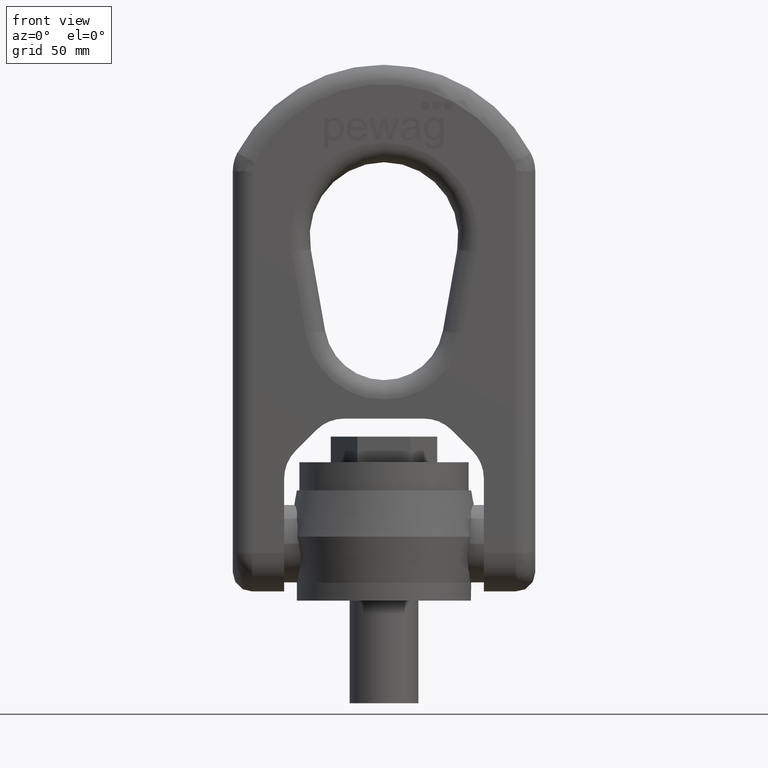
[diagram: clean part render]
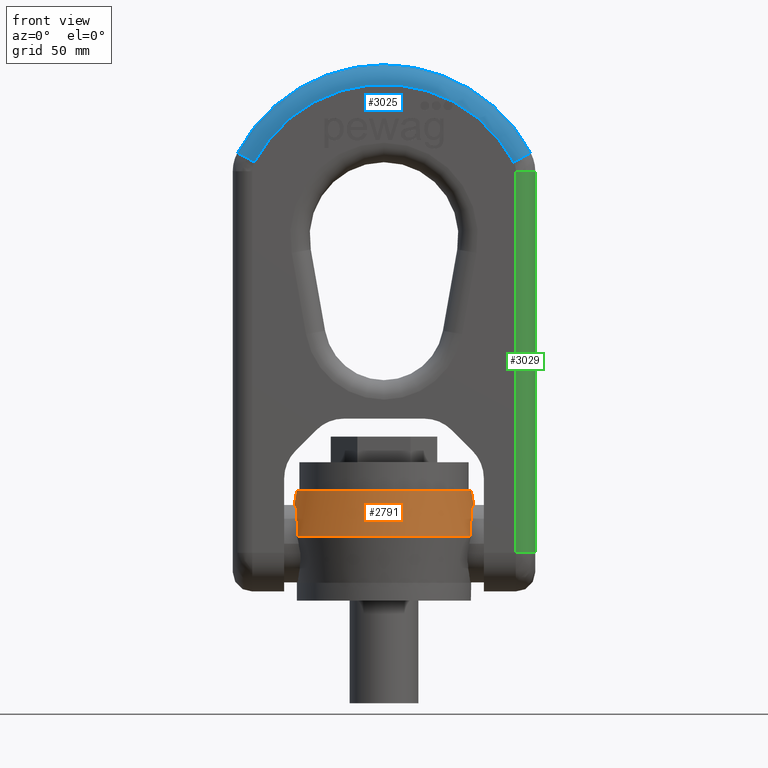
[diagram: same view with three faces highlighted in distinct colors, each labeled with its STEP entity id]
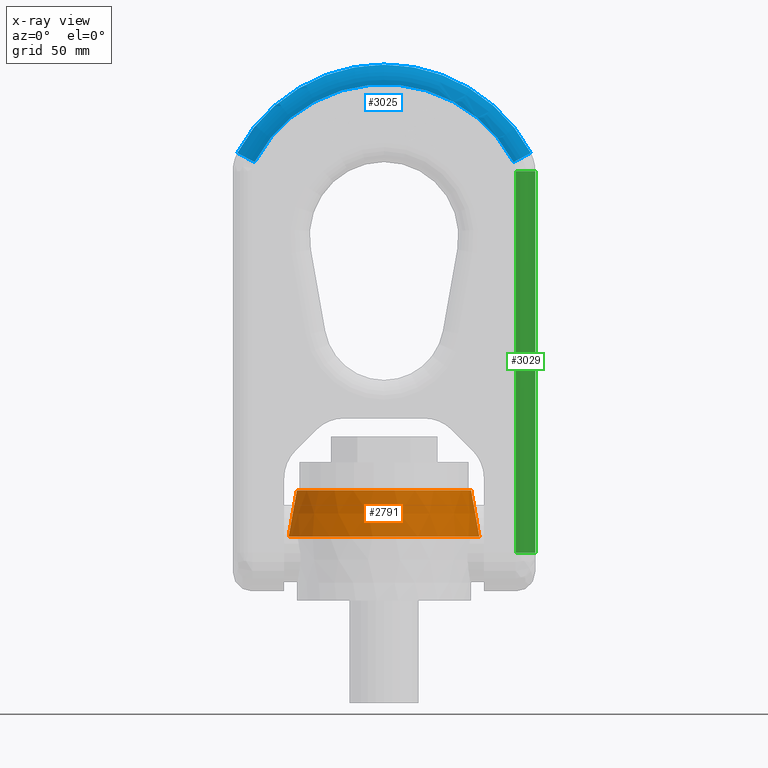
[diagram: x-ray of the same camera — body ghosted, the three highlighted faces saturated]
A machine part, front view with three faces highlighted in distinct colors.
The next image is the same camera in x-ray (body ghosted, the three faces saturated) — at least one of them is partly hidden behind the body in this view.
Their STEP definitions:

[orange] entity #2791 — the highlighted conical surface has half-angle 10 deg.
#2436=CONICAL_SURFACE('',#5839,37.1738856527524,9.99999999999999);
#2791=ADVANCED_FACE('',(#3077,#3078),#2436,.T.);
#3077=FACE_BOUND('',#3146,.T.);
#3078=FACE_BOUND('',#3147,.T.);
#3146=EDGE_LOOP('',(#3442));
#3147=EDGE_LOOP('',(#3443));
#3442=ORIENTED_EDGE('',*,*,#5122,.T.);
#3443=ORIENTED_EDGE('',*,*,#5121,.F.);
#4701=VERTEX_POINT('',#6950);
#4702=VERTEX_POINT('',#6953);
#5121=EDGE_CURVE('',#4701,#4701,#5753,.T.);
#5122=EDGE_CURVE('',#4702,#4702,#5754,.T.);
#5753=CIRCLE('',#5836,37.1738856527524);
#5754=CIRCLE('',#5838,34.);
#5836=AXIS2_PLACEMENT_3D('',#6949,#6082,#6083);
#5838=AXIS2_PLACEMENT_3D('',#6952,#6086,#6087);
#5839=AXIS2_PLACEMENT_3D('',#6954,#6088,#6089);
#6082=DIRECTION('',(0.,0.,-1.));
#6083=DIRECTION('',(-1.,0.,0.));
#6086=DIRECTION('',(0.,0.,-1.));
#6087=DIRECTION('',(-1.,0.,0.));
#6088=DIRECTION('',(0.,0.,-1.));
#6089=DIRECTION('',(-1.,0.,8.12513553477516E-17));
#6949=CARTESIAN_POINT('',(0.,0.,25.));
#6950=CARTESIAN_POINT('',(-37.1738856527524,0.,25.));
#6952=CARTESIAN_POINT('',(0.,0.,43.));
#6953=CARTESIAN_POINT('',(-34.,0.,43.));
#6954=CARTESIAN_POINT('',(0.,0.,25.));

[blue] entity #3025 — the highlighted toroidal blend (fillet) surface has major radius 57.2026 mm and minor (blend) radius 7.6 mm.
#201=TOROIDAL_SURFACE('',#6039,57.2026315789474,7.6);
#2650=FACE_OUTER_BOUND('',#3418,.T.);
#3025=ADVANCED_FACE('',(#2650),#201,.T.);
#3418=EDGE_LOOP('',(#4637,#4638,#4639,#4640));
#4637=ORIENTED_EDGE('',*,*,#5733,.F.);
#4638=ORIENTED_EDGE('',*,*,#5182,.F.);
#4639=ORIENTED_EDGE('',*,*,#5735,.T.);
#4640=ORIENTED_EDGE('',*,*,#5371,.F.);
#4748=VERTEX_POINT('',#7080);
#4749=VERTEX_POINT('',#7082);
#4927=VERTEX_POINT('',#7761);
#4930=VERTEX_POINT('',#7766);
#5182=EDGE_CURVE('',#4748,#4749,#5766,.T.);
#5371=EDGE_CURVE('',#4930,#4927,#5792,.T.);
#5733=EDGE_CURVE('',#4749,#4930,#5811,.T.);
#5735=EDGE_CURVE('',#4748,#4927,#5813,.T.);
#5766=CIRCLE('',#5872,57.2026315789474);
#5792=CIRCLE('',#5905,64.8026315789474);
#5811=CIRCLE('',#6036,7.6);
#5813=CIRCLE('',#6038,7.6);
#5872=AXIS2_PLACEMENT_3D('',#7081,#6202,#6203);
#5905=AXIS2_PLACEMENT_3D('',#7767,#6363,#6364);
#6036=AXIS2_PLACEMENT_3D('',#9737,#6880,#6881);
#6038=AXIS2_PLACEMENT_3D('',#9771,#6884,#6885);
#6039=AXIS2_PLACEMENT_3D('',#9772,#6886,#6887);
#6202=DIRECTION('',(0.,-1.,0.));
#6203=DIRECTION('',(0.,0.,-1.));
#6363=DIRECTION('',(0.,1.,0.));
#6364=DIRECTION('',(0.,0.,-1.));
#6880=DIRECTION('',(-0.469339749287081,3.65333715049538E-15,-0.883017666719721));
#6881=DIRECTION('',(0.883017666719721,0.,-0.46933974928708));
#6884=DIRECTION('',(-0.469339749287084,3.65333715049538E-15,0.883017666719719));
#6885=DIRECTION('',(-0.883017666719719,0.,-0.469339749287084));
#6886=DIRECTION('',(0.,-1.,0.));
#6887=DIRECTION('',(0.,0.,-1.));
#7080=CARTESIAN_POINT('',(50.5109342670699,-15.2,171.044837184877));
#7081=CARTESIAN_POINT('',(0.,-15.2,144.197368421053));
#7082=CARTESIAN_POINT('',(-50.5109342670699,-15.2,171.044837184877));
#7761=CARTESIAN_POINT('',(57.2218685341398,-7.6,174.611819279459));
#7766=CARTESIAN_POINT('',(-57.2218685341398,-7.6,174.611819279459));
#7767=CARTESIAN_POINT('',(0.,-7.6,144.197368421053));
#9737=CARTESIAN_POINT('',(-50.5109342670699,-7.6,171.044837184877));
#9771=CARTESIAN_POINT('',(50.5109342670699,-7.6,171.044837184877));
#9772=CARTESIAN_POINT('',(0.,-7.6,144.197368421053));

[green] entity #3029 — the highlighted cylindrical surface (edge-blend (fillet) strip) has radius 7.6 mm, axis along (0, 0, -1).
#1776=LINE('',#7077,#2084);
#1869=LINE('',#7758,#2177);
#2084=VECTOR('',#6199,1.);
#2177=VECTOR('',#6356,1.);
#2654=FACE_OUTER_BOUND('',#3422,.T.);
#3029=ADVANCED_FACE('',(#2654),#3063,.T.);
#3063=CYLINDRICAL_SURFACE('',#6045,7.6);
#3422=EDGE_LOOP('',(#4653,#4654,#4655,#4656));
#4653=ORIENTED_EDGE('',*,*,#5737,.F.);
#4654=ORIENTED_EDGE('',*,*,#5180,.F.);
#4655=ORIENTED_EDGE('',*,*,#5739,.F.);
#4656=ORIENTED_EDGE('',*,*,#5367,.F.);
#4742=VERTEX_POINT('',#7066);
#4747=VERTEX_POINT('',#7078);
#4923=VERTEX_POINT('',#7752);
#4926=VERTEX_POINT('',#7757);
#5180=EDGE_CURVE('',#4742,#4747,#1776,.T.);
#5367=EDGE_CURVE('',#4926,#4923,#1869,.T.);
#5737=EDGE_CURVE('',#4747,#4926,#5815,.T.);
#5739=EDGE_CURVE('',#4923,#4742,#5817,.T.);
#5815=CIRCLE('',#6042,7.6);
#5817=CIRCLE('',#6044,7.6);
#6042=AXIS2_PLACEMENT_3D('',#9775,#6892,#6893);
#6044=AXIS2_PLACEMENT_3D('',#9809,#6896,#6897);
#6045=AXIS2_PLACEMENT_3D('',#9810,#6898,#6899);
#6199=DIRECTION('',(-8.28524645242654E-17,0.,1.));
#6356=DIRECTION('',(8.28524645242654E-17,0.,-1.));
#6892=DIRECTION('',(0.,0.,1.));
#6893=DIRECTION('',(-1.,0.,0.));
#6896=DIRECTION('',(0.,0.,-1.));
#6897=DIRECTION('',(-1.,0.,0.));
#6898=DIRECTION('',(8.28524645242654E-17,0.,-1.));
#6899=DIRECTION('',(-1.,0.,0.));
#7066=CARTESIAN_POINT('',(51.4,-15.2,18.6999999999999));
#7077=CARTESIAN_POINT('',(51.4,-15.2,167.477855090295));
#7078=CARTESIAN_POINT('',(51.4,-15.2,167.477855090295));
#7752=CARTESIAN_POINT('',(59.,-7.6,18.6999999999999));
#7757=CARTESIAN_POINT('',(59.,-7.6,167.477855090295));
#7758=CARTESIAN_POINT('',(59.,-7.6,18.6999999999999));
#9775=CARTESIAN_POINT('',(51.4,-7.6,167.477855090295));
#9809=CARTESIAN_POINT('',(51.4,-7.6,18.6999999999999));
#9810=CARTESIAN_POINT('',(51.4,-7.6,144.197368421053));